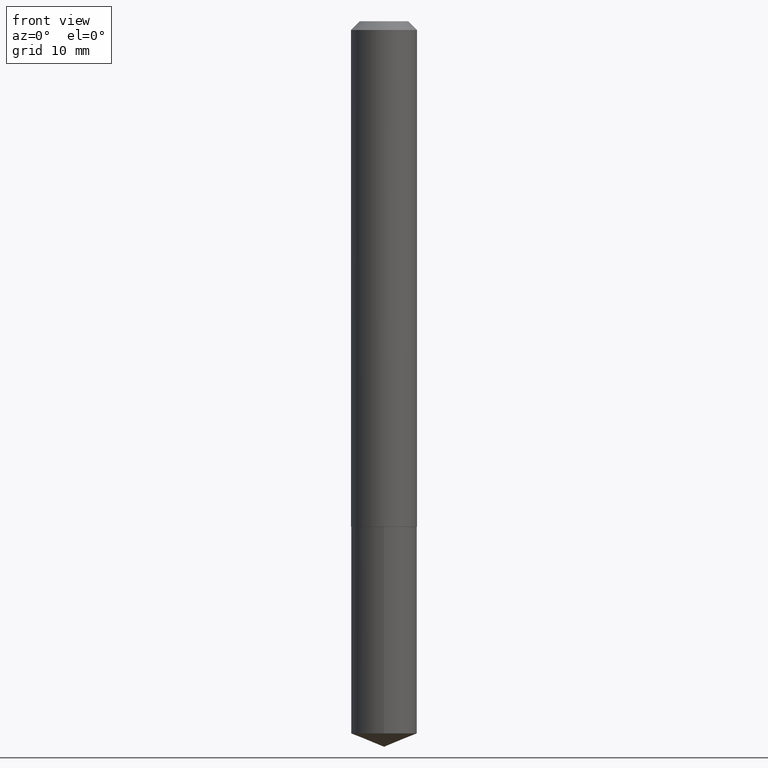
[diagram: clean part render]
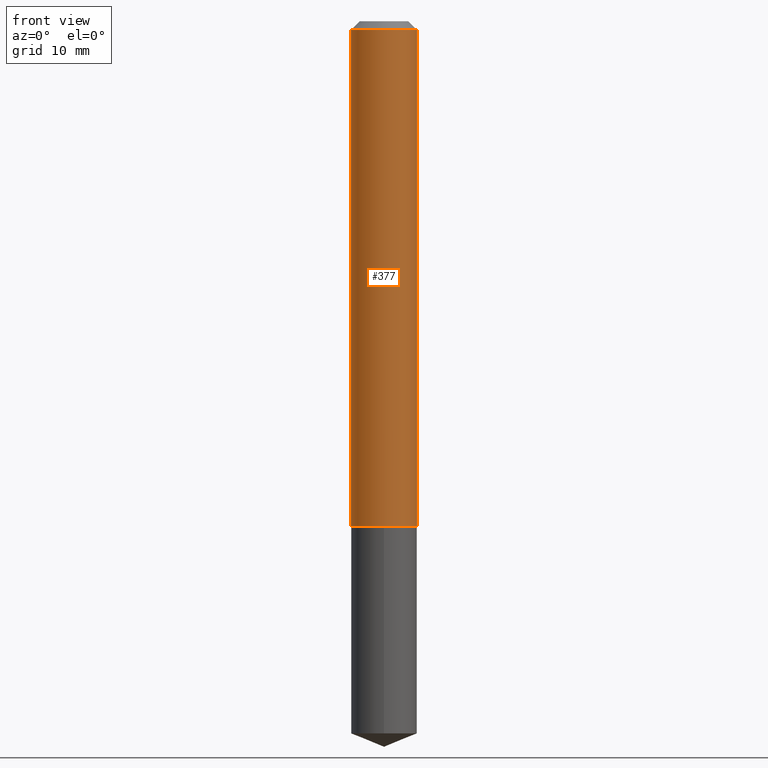
[diagram: same view with one face highlighted and labeled with its STEP entity id]
A machine part, front view. The second image highlights one B-rep face of the part: STEP entity #377.
In plain terms, the highlighted cylindrical surface (edge-blend (fillet) strip) has radius 2.9997 mm, axis along (-0, 0, 1).
Its self-contained STEP definition (entity closure, byte-faithful):
#1 = CARTESIAN_POINT ( 'NONE',  ( -0.1181000000000001215, 8.391509709326791832E-16, -5.809262341591049389E-30 ) ) ;
#10 = CARTESIAN_POINT ( 'NONE',  ( 0.1181000000000002326, -7.146014856210262754E-15, -1.810499999999999776 ) ) ;
#11 = CIRCLE ( 'NONE', #382, 0.1180999999999999966 ) ;
#15 = FACE_OUTER_BOUND ( 'NONE', #241, .T. ) ;
#37 = ORIENTED_EDGE ( 'NONE', *, *, #319, .T. ) ;
#38 = LINE ( 'NONE', #104, #140 ) ;
#59 = EDGE_CURVE ( 'NONE', #388, #366, #238, .T. ) ;
#65 = DIRECTION ( 'NONE',  ( 1.000000000000000000, -6.982962677686266711E-15, 0.000000000000000000 ) ) ;
#72 = CARTESIAN_POINT ( 'NONE',  ( -0.1180999999999999966, -2.376066906974500838E-15, -0.03125000000000021511 ) ) ;
#87 = ORIENTED_EDGE ( 'NONE', *, *, #59, .T. ) ;
#104 = CARTESIAN_POINT ( 'NONE',  ( 0.1181000000000001215, -8.246878922347489529E-16, 5.758764772215006046E-30 ) ) ;
#105 = DIRECTION ( 'NONE',  ( 1.000000000000000000, -6.982962677686266711E-15, 0.000000000000000000 ) ) ;
#114 = CARTESIAN_POINT ( 'NONE',  ( 7.642090019328603538E-31, -1.091087918388490390E-16, -0.03125000000000021511 ) ) ;
#119 = VERTEX_POINT ( 'NONE', #329 ) ;
#122 = AXIS2_PLACEMENT_3D ( 'NONE', #343, #281, #105 ) ;
#140 = VECTOR ( 'NONE', #160, 39.37007874015748143 ) ;
#148 = EDGE_CURVE ( 'NONE', #388, #294, #365, .T. ) ;
#160 = DIRECTION ( 'NONE',  ( -2.445468806185136877E-29, 3.491481338843145188E-15, 1.000000000000000000 ) ) ;
#161 = CYLINDRICAL_SURFACE ( 'NONE', #249, 0.1181000000000001215 ) ;
#193 = EDGE_CURVE ( 'NONE', #294, #119, #11, .T. ) ;
#205 = DIRECTION ( 'NONE',  ( -2.445468806185136597E-29, 3.491481338843145583E-15, 1.000000000000000000 ) ) ;
#238 = CIRCLE ( 'NONE', #122, 0.1181000000000002326 ) ;
#241 = EDGE_LOOP ( 'NONE', ( #333, #87, #37, #266 ) ) ;
#249 = AXIS2_PLACEMENT_3D ( 'NONE', #253, #250, #376 ) ;
#250 = DIRECTION ( 'NONE',  ( -2.445468806185136597E-29, 3.491481338843145583E-15, 1.000000000000000000 ) ) ;
#253 = CARTESIAN_POINT ( 'NONE',  ( 0.000000000000000000, 0.000000000000000000, 0.000000000000000000 ) ) ;
#266 = ORIENTED_EDGE ( 'NONE', *, *, #193, .F. ) ;
#281 = DIRECTION ( 'NONE',  ( -2.445468806185136597E-29, 3.491481338843145583E-15, 1.000000000000000000 ) ) ;
#285 = VECTOR ( 'NONE', #304, 39.37007874015748143 ) ;
#294 = VERTEX_POINT ( 'NONE', #72 ) ;
#304 = DIRECTION ( 'NONE',  ( -2.445468806185136877E-29, 3.491481338843145188E-15, 1.000000000000000000 ) ) ;
#319 = EDGE_CURVE ( 'NONE', #366, #119, #38, .T. ) ;
#329 = CARTESIAN_POINT ( 'NONE',  ( 0.1180999999999999966, -9.337966840735971660E-16, -0.03125000000000021511 ) ) ;
#333 = ORIENTED_EDGE ( 'NONE', *, *, #148, .F. ) ;
#343 = CARTESIAN_POINT ( 'NONE',  ( 4.427521273598188876E-29, -6.321326963975513703E-15, -1.810499999999999776 ) ) ;
#365 = LINE ( 'NONE', #1, #285 ) ;
#366 = VERTEX_POINT ( 'NONE', #10 ) ;
#372 = CARTESIAN_POINT ( 'NONE',  ( -0.1181000000000002326, -5.482175993042833139E-15, -1.810499999999999776 ) ) ;
#376 = DIRECTION ( 'NONE',  ( 1.000000000000000000, -6.982962677686266711E-15, 4.876176775795935793E-29 ) ) ;
#377 = ADVANCED_FACE ( 'NONE', ( #15 ), #161, .T. ) ;
#382 = AXIS2_PLACEMENT_3D ( 'NONE', #114, #205, #65 ) ;
#388 = VERTEX_POINT ( 'NONE', #372 ) ;